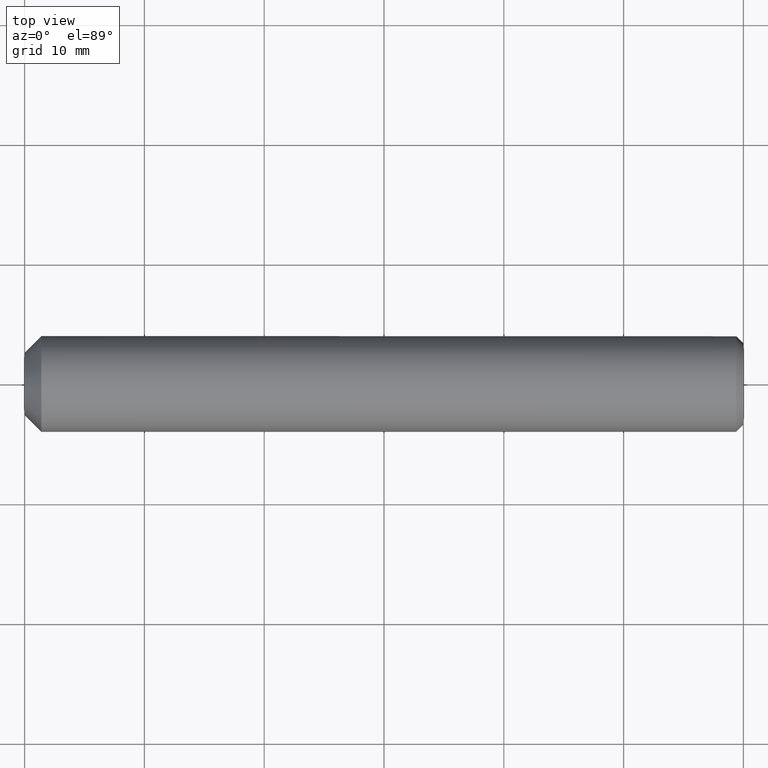
[diagram: clean part render]
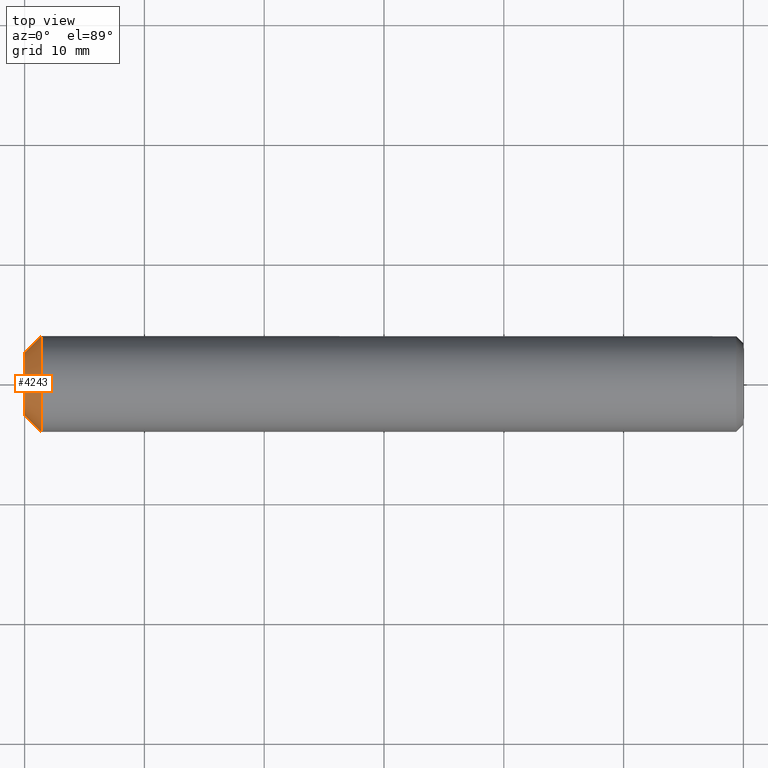
[diagram: same view with one face highlighted and labeled with its STEP entity id]
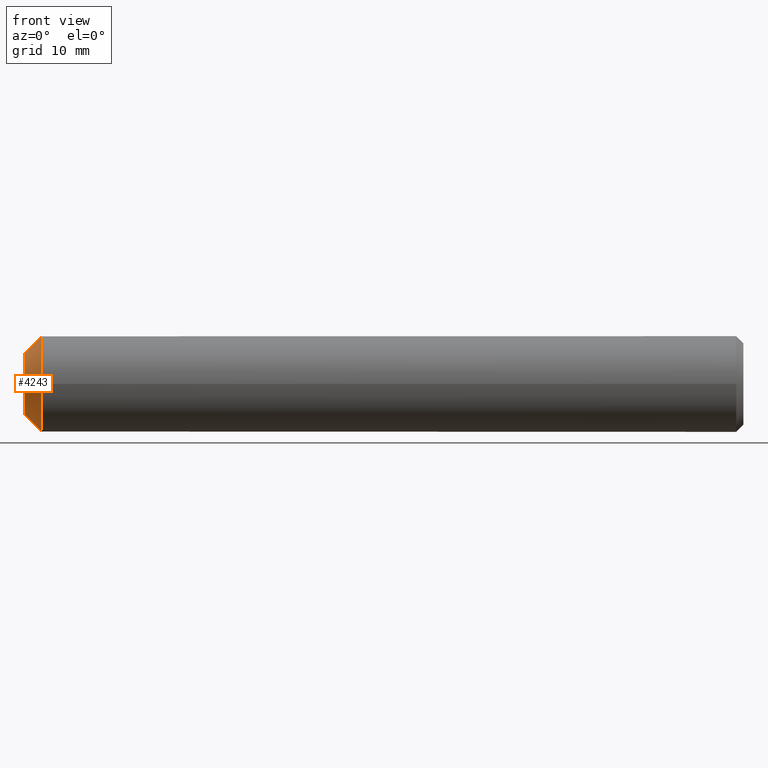
[diagram: same view with one face highlighted and labeled with its STEP entity id]
A machine part, top view. The second image highlights one B-rep face of the part: STEP entity #4243.
A second angle (front view) of the same face is appended — the face is thin or edge-on in the first view.
In plain terms, the highlighted conical surface has half-angle 45 deg.
Its self-contained STEP definition (entity closure, byte-faithful):
#440 = CARTESIAN_POINT ( 'NONE',  ( 1.399999999999992100, -4.538988261647290800E-017, 0.0000000000000000000 ) ) ;
#622 = DIRECTION ( 'NONE',  ( -5.421010862427522200E-017, -1.000000000000000000, 0.0000000000000000000 ) ) ;
#910 = CARTESIAN_POINT ( 'NONE',  ( -9.654196427920933800E-017, 3.130020304426469200E-033, 0.0000000000000000000 ) ) ;
#1129 = CARTESIAN_POINT ( 'NONE',  ( -9.654196427920933800E-017, 3.130020304426469200E-033, 0.0000000000000000000 ) ) ;
#2305 = EDGE_LOOP ( 'NONE', ( #16599 ) ) ;
#2352 = EDGE_LOOP ( 'NONE', ( #13426 ) ) ;
#2646 = CONICAL_SURFACE ( 'NONE', #7759, 2.600000000000000100, 0.7853981633974511700 ) ;
#3073 = CARTESIAN_POINT ( 'NONE',  ( 1.399999999999991900, -4.000000000000000000, 0.0000000000000000000 ) ) ;
#4005 = DIRECTION ( 'NONE',  ( -1.000000000000000000, 3.242134472605225800E-017, -0.0000000000000000000 ) ) ;
#4243 = ADVANCED_FACE ( 'NONE', ( #10399, #14865 ), #2646, .T. ) ;
#4920 = EDGE_CURVE ( 'NONE', #11508, #11508, #13504, .T. ) ;
#5400 = DIRECTION ( 'NONE',  ( -3.242134472605225800E-017, -1.000000000000000000, 0.0000000000000000000 ) ) ;
#7156 = AXIS2_PLACEMENT_3D ( 'NONE', #440, #10367, #622 ) ;
#7759 = AXIS2_PLACEMENT_3D ( 'NONE', #910, #9784, #8338 ) ;
#8014 = CIRCLE ( 'NONE', #14113, 2.600000000000000100 ) ;
#8338 = DIRECTION ( 'NONE',  ( 3.242134472605225800E-017, 1.000000000000000000, 0.0000000000000000000 ) ) ;
#9784 = DIRECTION ( 'NONE',  ( 1.000000000000000000, -3.242134472605225800E-017, 0.0000000000000000000 ) ) ;
#10367 = DIRECTION ( 'NONE',  ( -1.000000000000000000, 3.242134472605225800E-017, -0.0000000000000000000 ) ) ;
#10399 = FACE_OUTER_BOUND ( 'NONE', #2305, .T. ) ;
#11508 = VERTEX_POINT ( 'NONE', #3073 ) ;
#12900 = EDGE_CURVE ( 'NONE', #13041, #13041, #8014, .T. ) ;
#13041 = VERTEX_POINT ( 'NONE', #17268 ) ;
#13426 = ORIENTED_EDGE ( 'NONE', *, *, #12900, .F. ) ;
#13504 = CIRCLE ( 'NONE', #7156, 4.000000000000000000 ) ;
#14113 = AXIS2_PLACEMENT_3D ( 'NONE', #1129, #4005, #5400 ) ;
#14865 = FACE_BOUND ( 'NONE', #2352, .T. ) ;
#16599 = ORIENTED_EDGE ( 'NONE', *, *, #4920, .T. ) ;
#17268 = CARTESIAN_POINT ( 'NONE',  ( -1.808374605669452000E-016, -2.600000000000000100, 0.0000000000000000000 ) ) ;